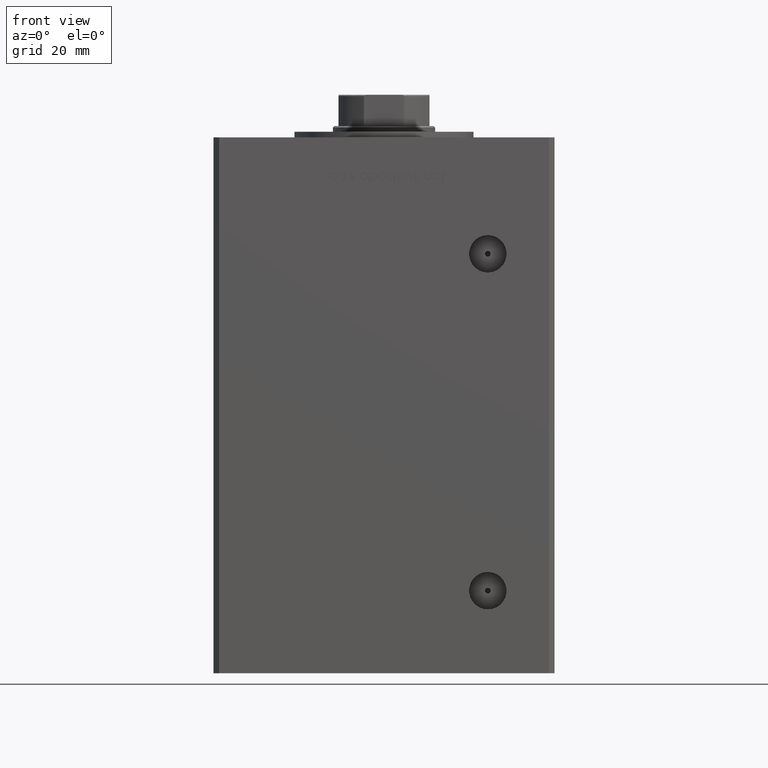
[diagram: clean part render]
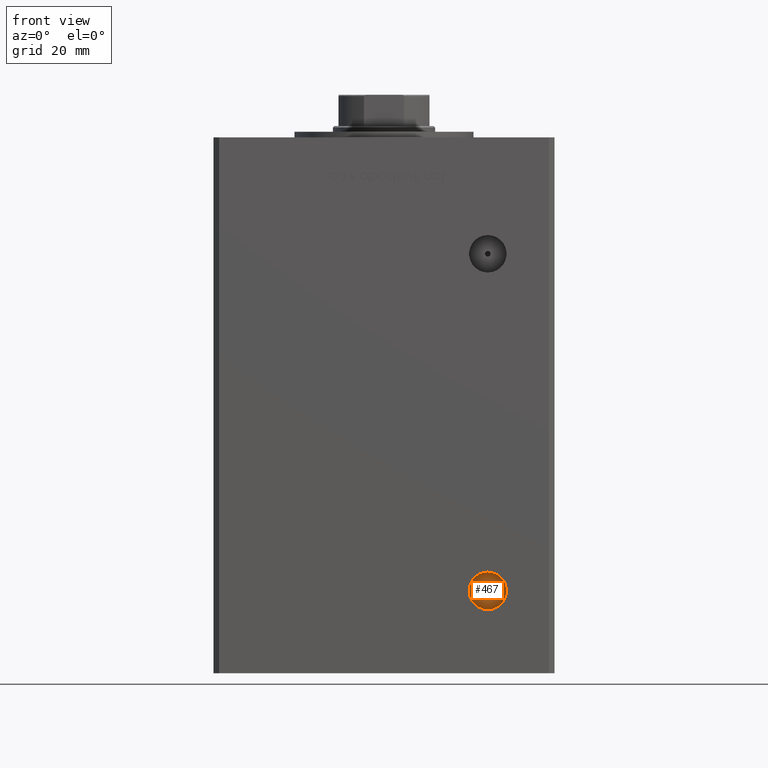
[diagram: same view with one face highlighted and labeled with its STEP entity id]
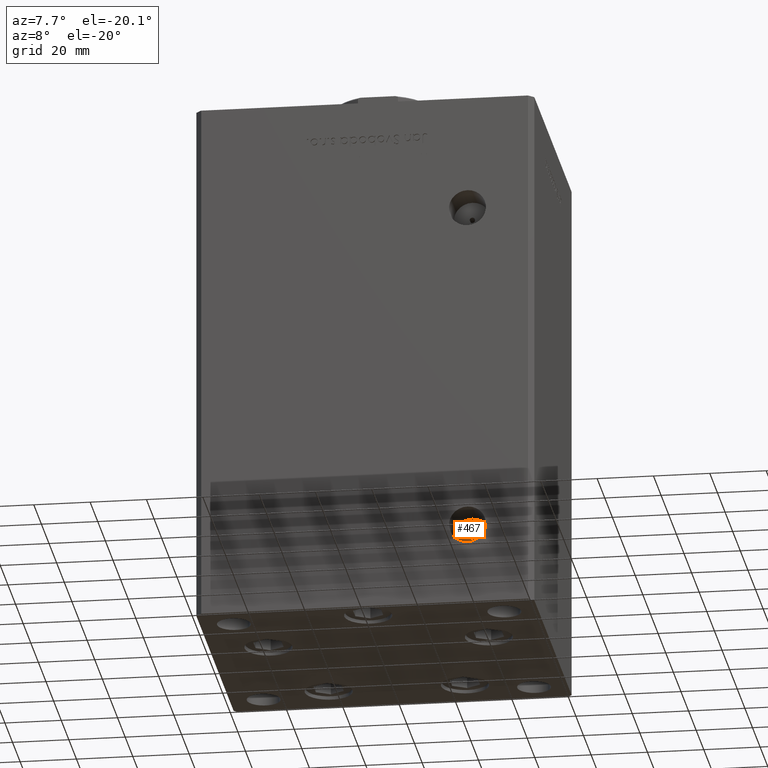
[diagram: same view with one face highlighted and labeled with its STEP entity id]
A machine part, front view. The second image highlights one B-rep face of the part: STEP entity #467.
A second angle (auxiliary view) of the same face is appended — the face is thin or edge-on in the first view.
In plain terms, the highlighted planar face has unit normal (0, -1, 0).
Its self-contained STEP definition (entity closure, byte-faithful):
#467 = ADVANCED_FACE ( 'NONE', ( #32643, #4448 ), #37112, .T. ) ;
#793 = AXIS2_PLACEMENT_3D ( 'NONE', #25664, #41747, #26697 ) ;
#1021 = DIRECTION ( 'NONE',  ( 0.000000000000000000, -0.000000000000000000, -1.000000000000000000 ) ) ;
#3342 = VERTEX_POINT ( 'NONE', #15738 ) ;
#3389 = DIRECTION ( 'NONE',  ( 0.000000000000000000, -1.000000000000000000, 0.000000000000000000 ) ) ;
#4448 = FACE_OUTER_BOUND ( 'NONE', #18976, .T. ) ;
#6890 = VERTEX_POINT ( 'NONE', #8695 ) ;
#7867 = CARTESIAN_POINT ( 'NONE',  ( 36.49999999999998579, -38.00000000000000711, 9.000000000000007105 ) ) ;
#8695 = CARTESIAN_POINT ( 'NONE',  ( 36.49999999999998579, -38.00000000000000711, 8.000000000000010658 ) ) ;
#13358 = EDGE_CURVE ( 'NONE', #34503, #3342, #39488, .T. ) ;
#15187 = CARTESIAN_POINT ( 'NONE',  ( 36.49999999999998579, -38.00000000000000711, 10.00000000000000533 ) ) ;
#15587 = DIRECTION ( 'NONE',  ( 0.000000000000000000, 0.000000000000000000, -1.000000000000000000 ) ) ;
#15600 = AXIS2_PLACEMENT_3D ( 'NONE', #36945, #31955, #36434 ) ;
#15738 = CARTESIAN_POINT ( 'NONE',  ( 36.49999999999998579, -38.00000000000000711, 15.58000000000000362 ) ) ;
#17552 = EDGE_CURVE ( 'NONE', #3342, #34503, #24364, .T. ) ;
#17677 = AXIS2_PLACEMENT_3D ( 'NONE', #49238, #29207, #1021 ) ;
#18976 = EDGE_LOOP ( 'NONE', ( #46915, #51810 ) ) ;
#19102 = ORIENTED_EDGE ( 'NONE', *, *, #40212, .F. ) ;
#19537 = CARTESIAN_POINT ( 'NONE',  ( 36.49999999999998579, -38.00000000000000711, 9.000000000000007105 ) ) ;
#20627 = EDGE_CURVE ( 'NONE', #6890, #44268, #31215, .T. ) ;
#24364 = CIRCLE ( 'NONE', #47112, 6.579999999999994742 ) ;
#25664 = CARTESIAN_POINT ( 'NONE',  ( 36.49999999999998579, -38.00000000000000711, 9.000000000000007105 ) ) ;
#26697 = DIRECTION ( 'NONE',  ( 0.000000000000000000, 0.000000000000000000, -1.000000000000000000 ) ) ;
#29207 = DIRECTION ( 'NONE',  ( 0.000000000000000000, -1.000000000000000000, 0.000000000000000000 ) ) ;
#30326 = ORIENTED_EDGE ( 'NONE', *, *, #20627, .F. ) ;
#31215 = CIRCLE ( 'NONE', #47185, 0.9999999999999974465 ) ;
#31955 = DIRECTION ( 'NONE',  ( 0.000000000000000000, -1.000000000000000000, 0.000000000000000000 ) ) ;
#32643 = FACE_BOUND ( 'NONE', #47782, .T. ) ;
#34503 = VERTEX_POINT ( 'NONE', #38279 ) ;
#35538 = DIRECTION ( 'NONE',  ( 0.000000000000000000, 0.000000000000000000, -1.000000000000000000 ) ) ;
#35648 = DIRECTION ( 'NONE',  ( 0.000000000000000000, -1.000000000000000000, 0.000000000000000000 ) ) ;
#36434 = DIRECTION ( 'NONE',  ( 0.000000000000000000, 0.000000000000000000, -1.000000000000000000 ) ) ;
#36945 = CARTESIAN_POINT ( 'NONE',  ( 36.49999999999998579, -38.00000000000000711, 9.000000000000007105 ) ) ;
#37112 = PLANE ( 'NONE',  #17677 ) ;
#38279 = CARTESIAN_POINT ( 'NONE',  ( 36.49999999999998579, -38.00000000000000711, 2.420000000000013252 ) ) ;
#38343 = CIRCLE ( 'NONE', #15600, 0.9999999999999974465 ) ;
#39488 = CIRCLE ( 'NONE', #793, 6.579999999999994742 ) ;
#40212 = EDGE_CURVE ( 'NONE', #44268, #6890, #38343, .T. ) ;
#41747 = DIRECTION ( 'NONE',  ( 0.000000000000000000, -1.000000000000000000, 0.000000000000000000 ) ) ;
#44268 = VERTEX_POINT ( 'NONE', #15187 ) ;
#46915 = ORIENTED_EDGE ( 'NONE', *, *, #13358, .T. ) ;
#47112 = AXIS2_PLACEMENT_3D ( 'NONE', #7867, #3389, #35538 ) ;
#47185 = AXIS2_PLACEMENT_3D ( 'NONE', #19537, #35648, #15587 ) ;
#47782 = EDGE_LOOP ( 'NONE', ( #30326, #19102 ) ) ;
#49238 = CARTESIAN_POINT ( 'NONE',  ( 36.49999999999998579, -38.00000000000000711, 9.000000000000007105 ) ) ;
#51810 = ORIENTED_EDGE ( 'NONE', *, *, #17552, .T. ) ;